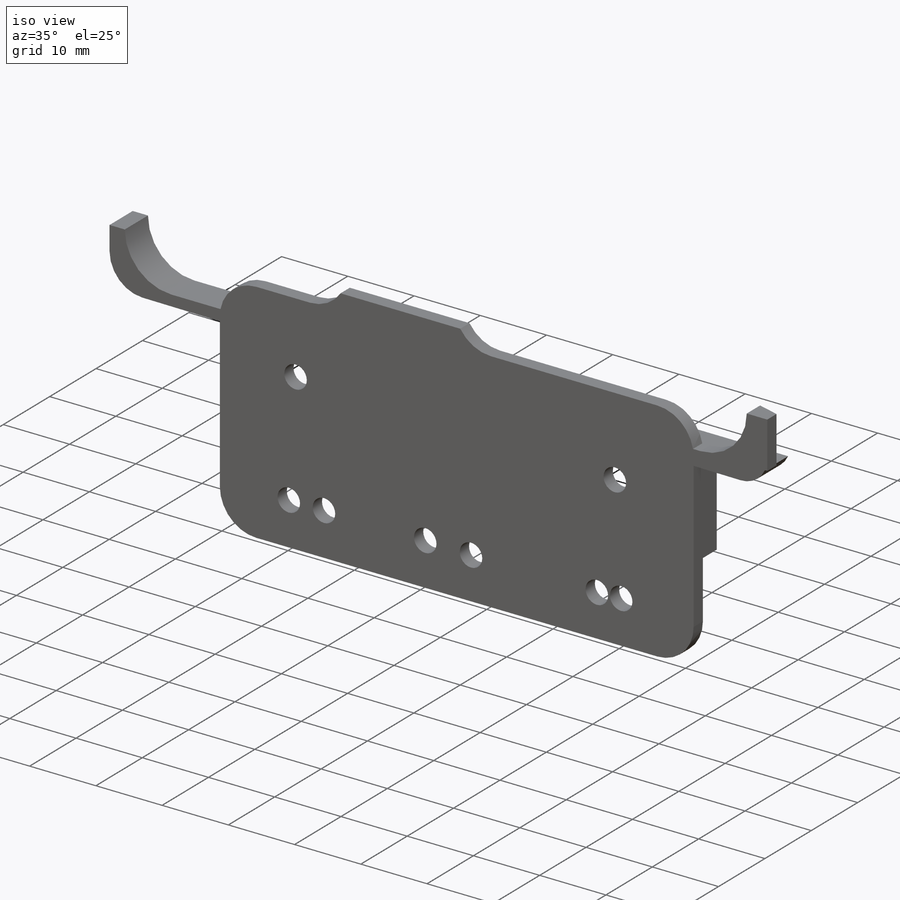
[diagram: iso view]
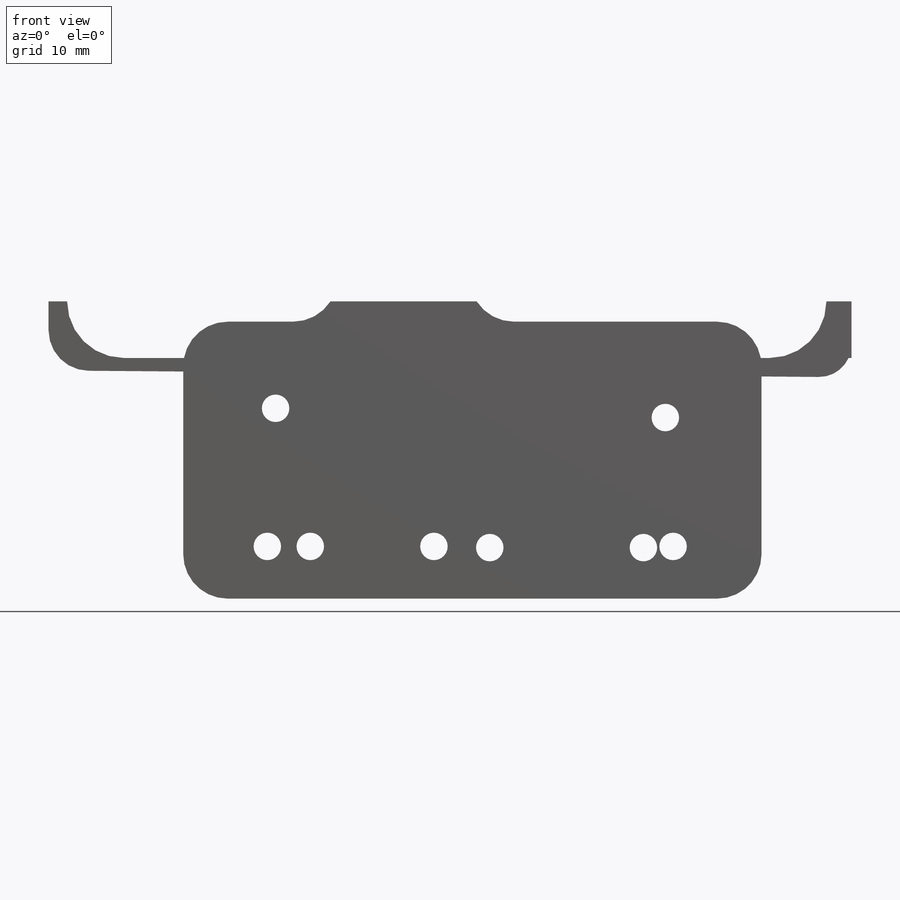
[diagram: front view]
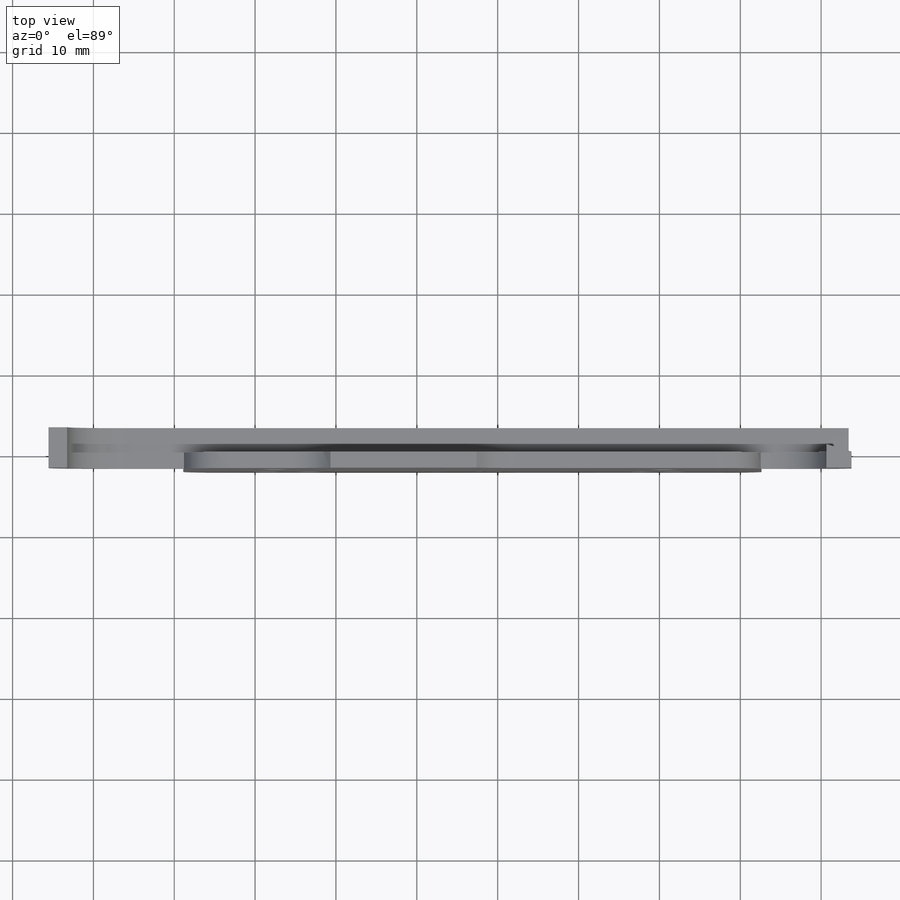
[diagram: top view]
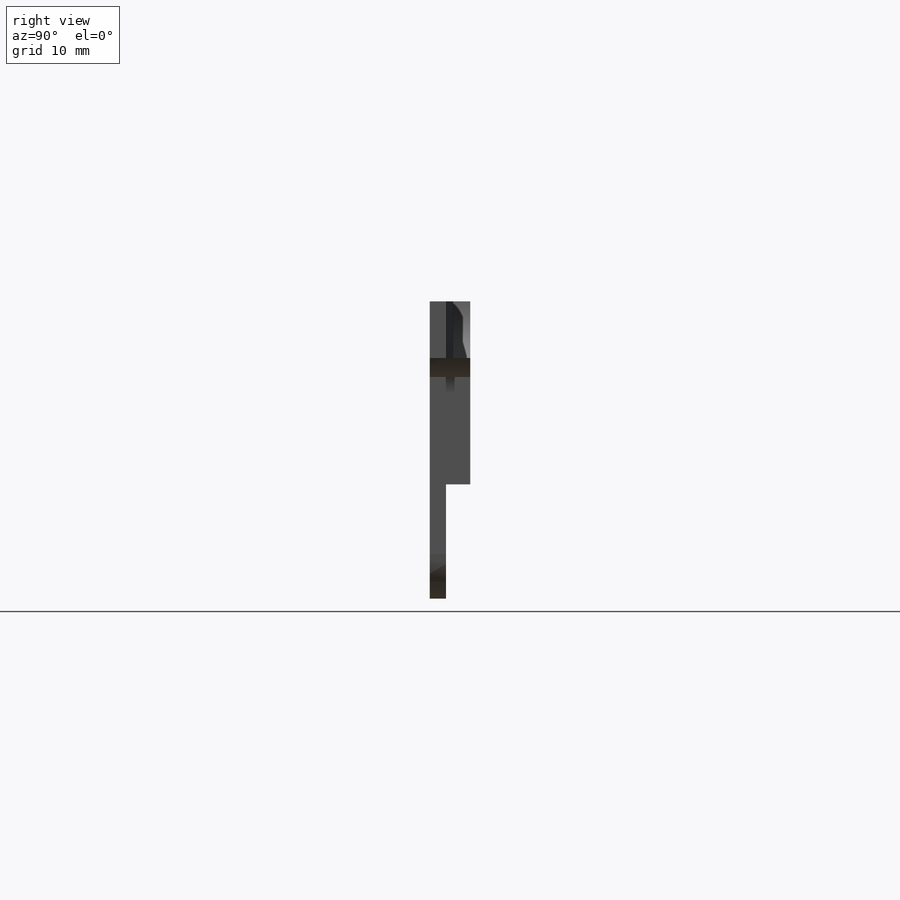
[diagram: right view]
SOLIDWORKS PART (.sldprt)
format: sldprt  version: not decoded by parser v0  size: 497,664 bytes
history: native  units: mm
features: sketch x9, cut_extrude x5, extrude x4, plane x3, material x1 (+10 scaffold rows collapsed)
feature tree (32):
  scaffold x10  (default folders/planes/origin — collapsed)
  material  "Matériau <non spécifié>"
  plane  "Plan de face"
  plane  "Plan de dessus"
  plane  "Plan de droite"
  sketch  "Esquisse1"  dims[D1=5.5mm D2=5.5mm D3=2.0mm D8=5.5mm D4=15.94mm D5=17.08mm D6=0.96mm D7=1.02mm]
  extrude  "Boss.-Extru.1"  Depth=3mm
  sketch  "Esquisse2"  dims[c1.D13=4.0mm c1.D14=5.0mm c1.D15=2.0mm c1.D16=5.0mm c1.D18=3.75mm c2.D14=3.0mm c2.D1=19.92mm c2.D2=93.9mm c2.D3=7.37mm c2.D4=62.75mm c2.D5=7.0mm c2.D6=7.0mm c2.D7=7.0mm c2.D8=7.0mm c2.D9=7.0mm c2.D10=7.0mm c2.D11=7.0mm c2.D12=7.0mm c2.D13=7.0mm c2.D17=2.3mm]
  extrude  "Boss.-Extru.2"  Depth=3mm
  sketch  "Esquisse5"
  cut_extrude  "Enlèv. mat.-Extru.2"  Depth=1mm
  sketch  "Esquisse6"  dims[D1=14.0mm]
  cut_extrude  "Enlèv. mat.-Extru.3"  Depth=8mm
  sketch  "Esquisse7"
  cut_extrude  "Enlèv. mat.-Extru.4"  Depth=8mm
  sketch  "Esquisse9"
  extrude  "Boss.-Extru.3"  Depth=7mm
  sketch  "Esquisse10"
  extrude  "Boss.-Extru.4"  Depth=7mm
  sketch  "Esquisse11"
  cut_extrude  "Enlèv. mat.-Extru.5"  Depth=89mm
  sketch  "Esquisse12"  dims[D1=15.29mm D2=19.0mm]
  cut_extrude  "Enlèv. mat.-Extru.6"  Depth=31mm
decode coverage: 13 of 18 modeling features carry decoded parameters
note: suppression state not decoded; provenance and decode notes live in map.json
